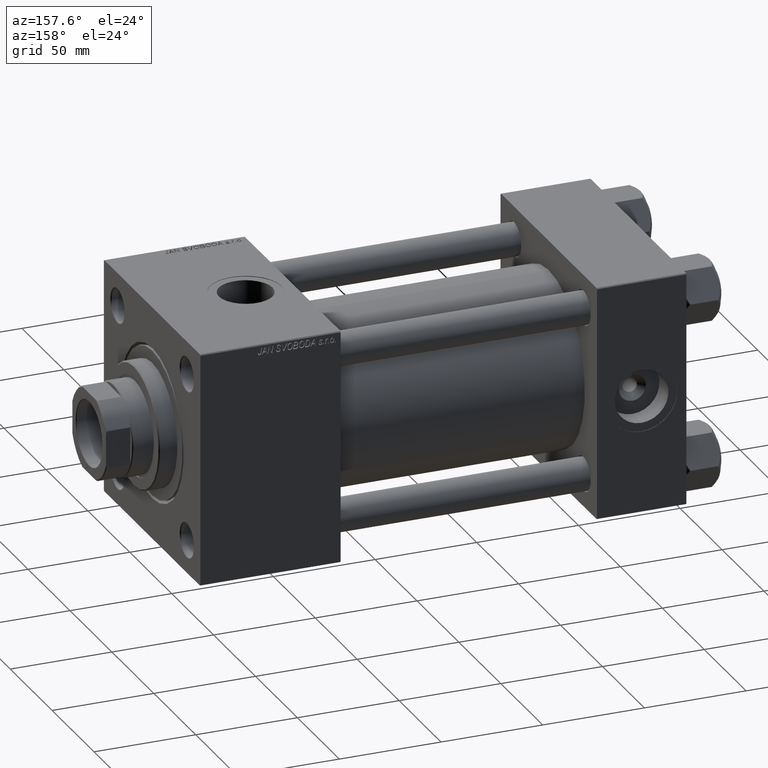
[diagram: clean part render]
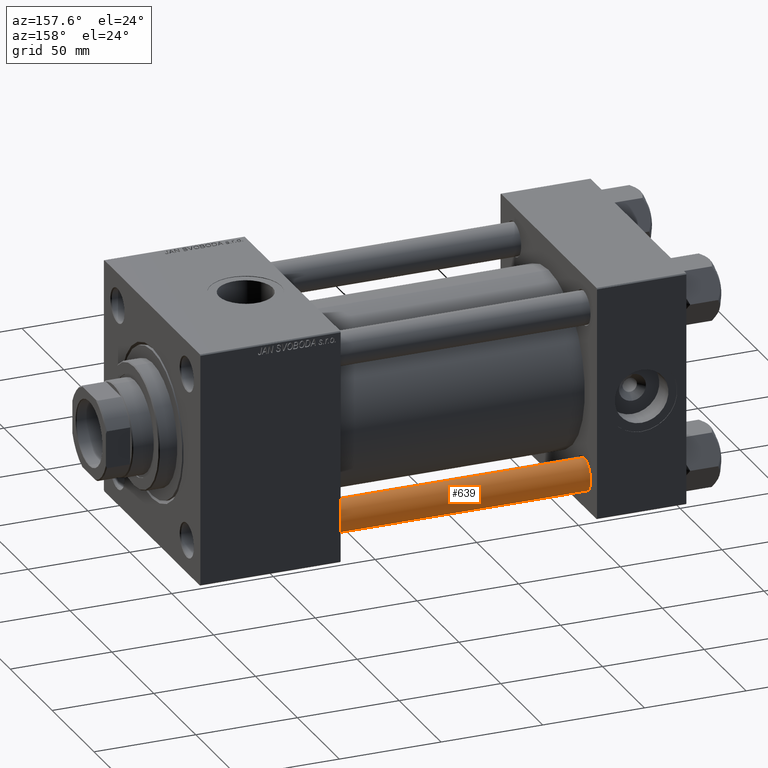
[diagram: same view with one face highlighted and labeled with its STEP entity id]
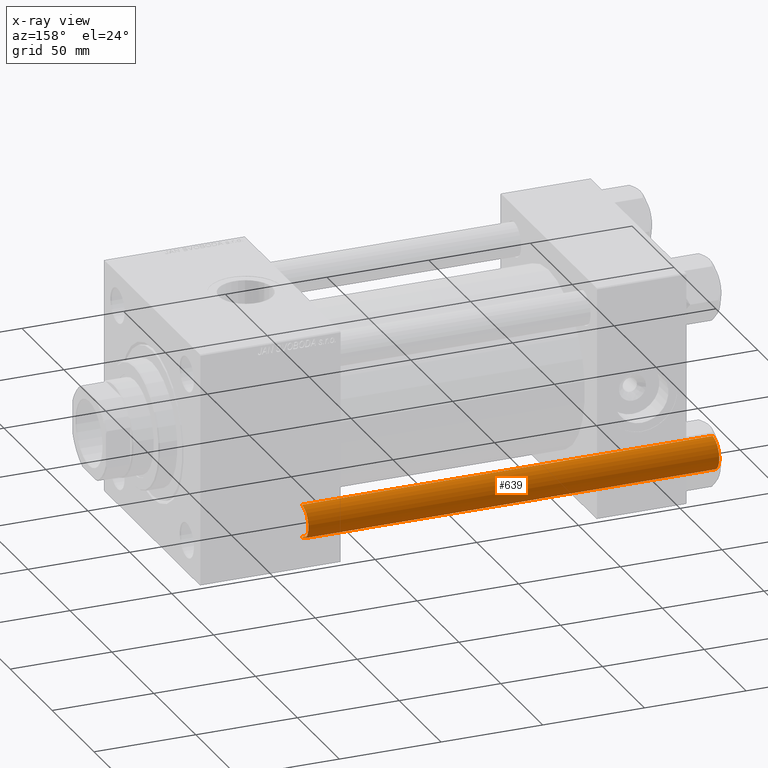
[diagram: x-ray of the same camera — body ghosted, the highlighted face saturated]
A machine part, auxiliary view. The second image highlights one B-rep face of the part: STEP entity #639.
The next image is the same camera in x-ray: the body ghosted, the highlighted face saturated — about 0% of this face is hidden behind the body in this view.
In plain terms, the highlighted cylindrical surface (edge-blend (fillet) strip) has radius 8 mm, axis along (1, -0, -0).
Its self-contained STEP definition (entity closure, byte-faithful):
#471 = DIRECTION ( 'NONE',  ( 0.000000000000000000, 0.000000000000000000, -1.000000000000000000 ) ) ;
#639 = ADVANCED_FACE ( 'NONE', ( #8813 ), #20091, .T. ) ;
#907 = AXIS2_PLACEMENT_3D ( 'NONE', #28110, #471, #43988 ) ;
#2611 = CARTESIAN_POINT ( 'NONE',  ( 8.000000000000000000, 9.797174393178823685E-16, 203.0000000000000000 ) ) ;
#2790 = VERTEX_POINT ( 'NONE', #13946 ) ;
#8542 = DIRECTION ( 'NONE',  ( -0.000000000000000000, -0.000000000000000000, -1.000000000000000000 ) ) ;
#8763 = CARTESIAN_POINT ( 'NONE',  ( 8.000000000000000000, 9.797174393178823685E-16, 0.5000000000001947331 ) ) ;
#8813 = FACE_OUTER_BOUND ( 'NONE', #9642, .T. ) ;
#9043 = EDGE_CURVE ( 'NONE', #48932, #2790, #12390, .T. ) ;
#9113 = VERTEX_POINT ( 'NONE', #16471 ) ;
#9642 = EDGE_LOOP ( 'NONE', ( #41966, #18062, #21902, #41441 ) ) ;
#12390 = LINE ( 'NONE', #43628, #44363 ) ;
#13946 = CARTESIAN_POINT ( 'NONE',  ( -8.000000000000000000, 0.000000000000000000, 0.5000000000001947331 ) ) ;
#16471 = CARTESIAN_POINT ( 'NONE',  ( 8.000000000000000000, 9.797174393178823685E-16, 202.5000000000000853 ) ) ;
#16739 = DIRECTION ( 'NONE',  ( -0.000000000000000000, -0.000000000000000000, -1.000000000000000000 ) ) ;
#16911 = EDGE_CURVE ( 'NONE', #48932, #9113, #21333, .T. ) ;
#18062 = ORIENTED_EDGE ( 'NONE', *, *, #38721, .T. ) ;
#18988 = CIRCLE ( 'NONE', #43525, 8.000000000000000000 ) ;
#19804 = EDGE_CURVE ( 'NONE', #21143, #2790, #18988, .T. ) ;
#20091 = CYLINDRICAL_SURFACE ( 'NONE', #23418, 8.000000000000000000 ) ;
#21143 = VERTEX_POINT ( 'NONE', #8763 ) ;
#21333 = CIRCLE ( 'NONE', #907, 8.000000000000000000 ) ;
#21902 = ORIENTED_EDGE ( 'NONE', *, *, #19804, .T. ) ;
#23418 = AXIS2_PLACEMENT_3D ( 'NONE', #24438, #16739, #28284 ) ;
#23693 = CARTESIAN_POINT ( 'NONE',  ( 0.000000000000000000, 0.000000000000000000, 0.5000000000001947331 ) ) ;
#24438 = CARTESIAN_POINT ( 'NONE',  ( 0.000000000000000000, 0.000000000000000000, 203.0000000000000000 ) ) ;
#26790 = DIRECTION ( 'NONE',  ( -0.000000000000000000, -0.000000000000000000, 1.000000000000000000 ) ) ;
#28110 = CARTESIAN_POINT ( 'NONE',  ( 0.000000000000000000, 0.000000000000000000, 202.5000000000000853 ) ) ;
#28284 = DIRECTION ( 'NONE',  ( -1.000000000000000000, 0.000000000000000000, 0.000000000000000000 ) ) ;
#34598 = DIRECTION ( 'NONE',  ( -0.000000000000000000, -0.000000000000000000, -1.000000000000000000 ) ) ;
#38721 = EDGE_CURVE ( 'NONE', #9113, #21143, #42042, .T. ) ;
#39205 = CARTESIAN_POINT ( 'NONE',  ( -8.000000000000000000, 0.000000000000000000, 202.5000000000000853 ) ) ;
#41062 = VECTOR ( 'NONE', #34598, 1000.000000000000000 ) ;
#41441 = ORIENTED_EDGE ( 'NONE', *, *, #9043, .F. ) ;
#41966 = ORIENTED_EDGE ( 'NONE', *, *, #16911, .T. ) ;
#42042 = LINE ( 'NONE', #2611, #41062 ) ;
#42915 = DIRECTION ( 'NONE',  ( 1.000000000000000000, 0.000000000000000000, 0.000000000000000000 ) ) ;
#43525 = AXIS2_PLACEMENT_3D ( 'NONE', #23693, #26790, #42915 ) ;
#43628 = CARTESIAN_POINT ( 'NONE',  ( -8.000000000000000000, 0.000000000000000000, 203.0000000000000000 ) ) ;
#43988 = DIRECTION ( 'NONE',  ( 1.000000000000000000, 0.000000000000000000, 0.000000000000000000 ) ) ;
#44363 = VECTOR ( 'NONE', #8542, 1000.000000000000000 ) ;
#48932 = VERTEX_POINT ( 'NONE', #39205 ) ;